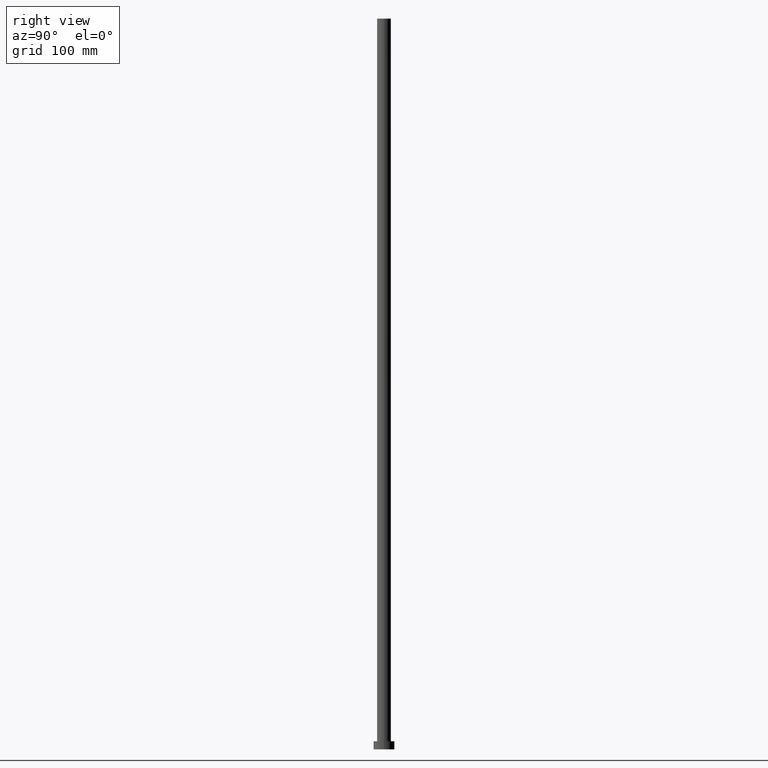
[diagram: clean part render]
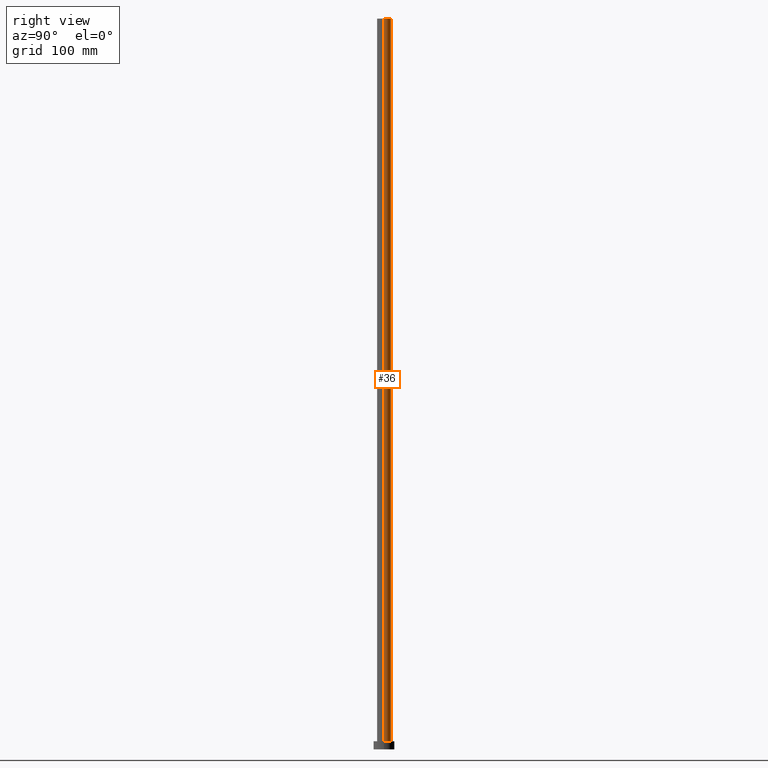
[diagram: same view with one face highlighted and labeled with its STEP entity id]
A machine part, right view. The second image highlights one B-rep face of the part: STEP entity #36.
In plain terms, the highlighted cylindrical surface (edge-blend (fillet) strip) has radius 6 mm, axis along (-0, -0, -1).
Its self-contained STEP definition (entity closure, byte-faithful):
#3 = EDGE_LOOP ( 'NONE', ( #160, #141, #60, #181 ) ) ;
#21 = CARTESIAN_POINT ( 'NONE',  ( 6.000000000000000888, 7.347880794884120722E-16, 7.000000000000000000 ) ) ;
#25 = CIRCLE ( 'NONE', #35, 6.000000000000000888 ) ;
#26 = EDGE_CURVE ( 'NONE', #88, #222, #193, .T. ) ;
#30 = EDGE_CURVE ( 'NONE', #83, #88, #25, .T. ) ;
#35 = AXIS2_PLACEMENT_3D ( 'NONE', #244, #210, #131 ) ;
#36 = ADVANCED_FACE ( 'NONE', ( #40 ), #129, .T. ) ;
#40 = FACE_OUTER_BOUND ( 'NONE', #3, .T. ) ;
#52 = AXIS2_PLACEMENT_3D ( 'NONE', #237, #59, #138 ) ;
#59 = DIRECTION ( 'NONE',  ( 0.000000000000000000, 0.000000000000000000, 1.000000000000000000 ) ) ;
#60 = ORIENTED_EDGE ( 'NONE', *, *, #234, .T. ) ;
#83 = VERTEX_POINT ( 'NONE', #213 ) ;
#88 = VERTEX_POINT ( 'NONE', #191 ) ;
#94 = CARTESIAN_POINT ( 'NONE',  ( 0.000000000000000000, 0.000000000000000000, 630.0000000000000000 ) ) ;
#101 = VECTOR ( 'NONE', #247, 1000.000000000000000 ) ;
#129 = CYLINDRICAL_SURFACE ( 'NONE', #150, 6.000000000000000888 ) ;
#131 = DIRECTION ( 'NONE',  ( 1.000000000000000000, 0.000000000000000000, 0.000000000000000000 ) ) ;
#135 = CIRCLE ( 'NONE', #52, 6.000000000000000888 ) ;
#136 = CARTESIAN_POINT ( 'NONE',  ( 6.000000000000000888, 7.347880794884120722E-16, 630.0000000000000000 ) ) ;
#138 = DIRECTION ( 'NONE',  ( 1.000000000000000000, 0.000000000000000000, 0.000000000000000000 ) ) ;
#141 = ORIENTED_EDGE ( 'NONE', *, *, #152, .T. ) ;
#144 = DIRECTION ( 'NONE',  ( -1.000000000000000000, 0.000000000000000000, 0.000000000000000000 ) ) ;
#150 = AXIS2_PLACEMENT_3D ( 'NONE', #94, #168, #144 ) ;
#151 = CARTESIAN_POINT ( 'NONE',  ( -6.000000000000000888, 0.000000000000000000, 630.0000000000000000 ) ) ;
#152 = EDGE_CURVE ( 'NONE', #83, #156, #254, .T. ) ;
#156 = VERTEX_POINT ( 'NONE', #21 ) ;
#157 = CARTESIAN_POINT ( 'NONE',  ( -6.000000000000000888, 0.000000000000000000, 7.000000000000000000 ) ) ;
#160 = ORIENTED_EDGE ( 'NONE', *, *, #30, .F. ) ;
#168 = DIRECTION ( 'NONE',  ( -0.000000000000000000, -0.000000000000000000, -1.000000000000000000 ) ) ;
#181 = ORIENTED_EDGE ( 'NONE', *, *, #26, .F. ) ;
#191 = CARTESIAN_POINT ( 'NONE',  ( -6.000000000000000888, 0.000000000000000000, 630.0000000000000000 ) ) ;
#193 = LINE ( 'NONE', #151, #101 ) ;
#210 = DIRECTION ( 'NONE',  ( 0.000000000000000000, 0.000000000000000000, 1.000000000000000000 ) ) ;
#213 = CARTESIAN_POINT ( 'NONE',  ( 6.000000000000000888, 7.347880794884120722E-16, 630.0000000000000000 ) ) ;
#218 = DIRECTION ( 'NONE',  ( -0.000000000000000000, -0.000000000000000000, -1.000000000000000000 ) ) ;
#221 = VECTOR ( 'NONE', #218, 1000.000000000000000 ) ;
#222 = VERTEX_POINT ( 'NONE', #157 ) ;
#234 = EDGE_CURVE ( 'NONE', #156, #222, #135, .T. ) ;
#237 = CARTESIAN_POINT ( 'NONE',  ( 0.000000000000000000, 0.000000000000000000, 7.000000000000000000 ) ) ;
#244 = CARTESIAN_POINT ( 'NONE',  ( 0.000000000000000000, 0.000000000000000000, 630.0000000000000000 ) ) ;
#247 = DIRECTION ( 'NONE',  ( -0.000000000000000000, -0.000000000000000000, -1.000000000000000000 ) ) ;
#254 = LINE ( 'NONE', #136, #221 ) ;